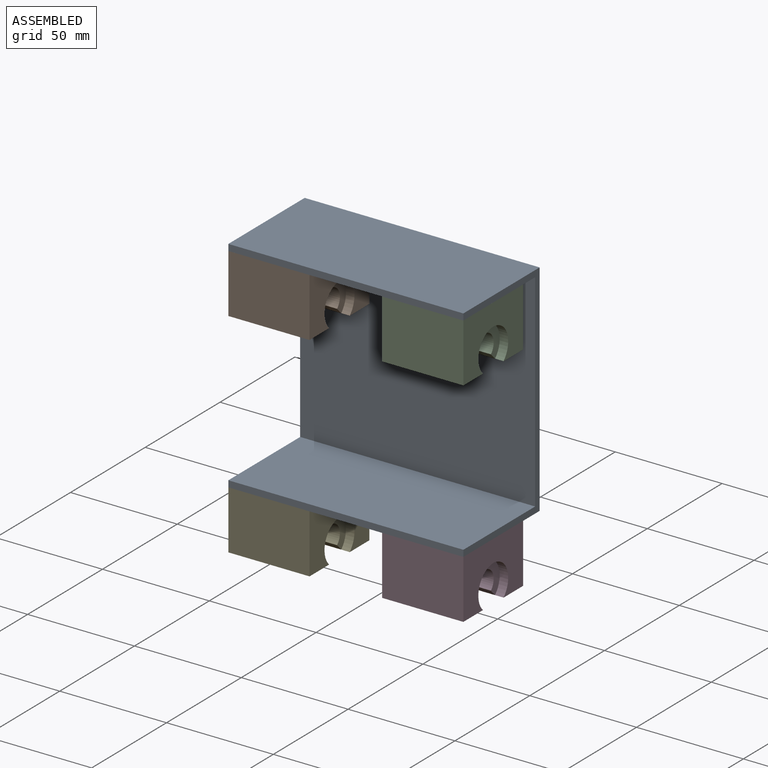
[diagram: assembled view]
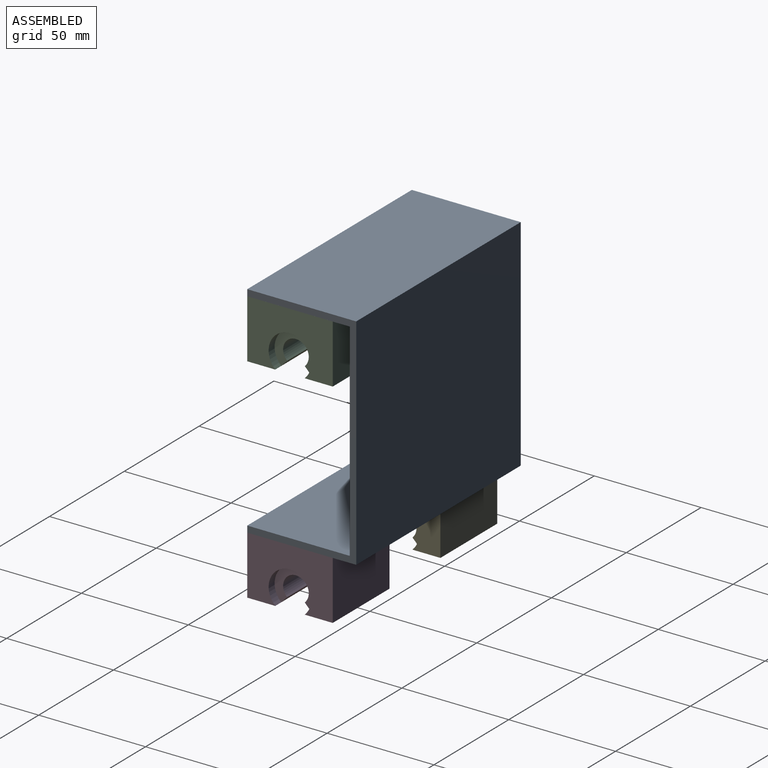
[diagram: assembled view, second angle]
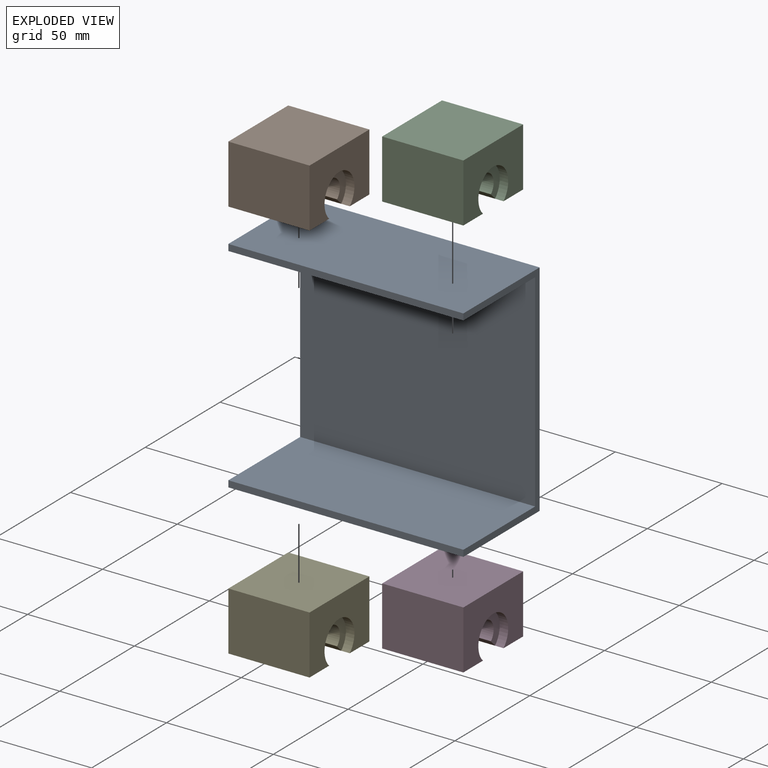
[diagram: exploded view]
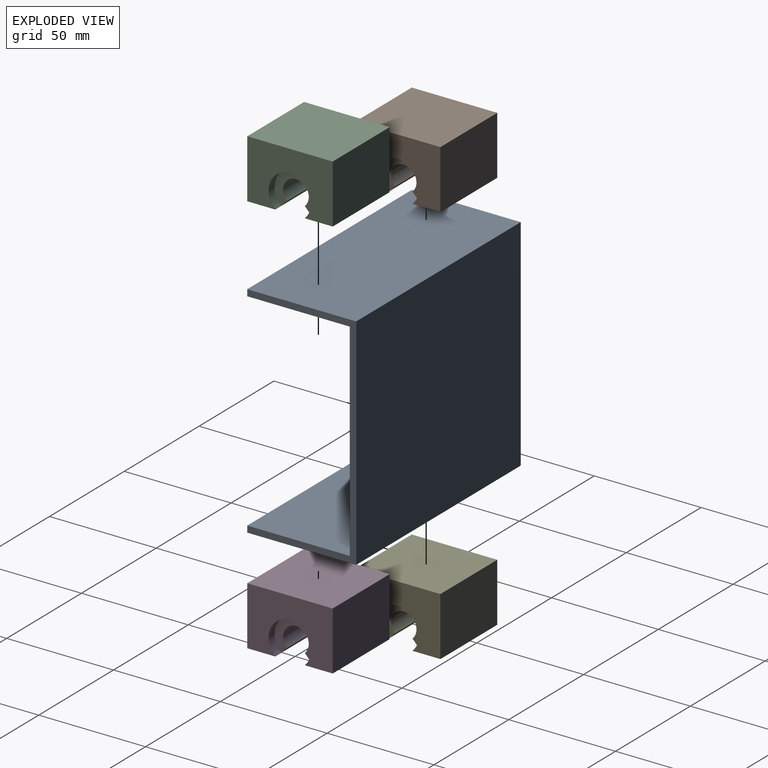
[diagram: exploded view, second angle]
ASSEMBLY  parts=5 mates=4
PART A: 10 faces, bbox 110x51x103 mm
  f0: plane 110x3mm, normal (0,1,0), area 330mm2, adj f1,f7,f8,f9
  f1: plane 110x51mm, normal (0,0,1), area 5610mm2, adj f0,f2,f8,f9
  f2: plane 110x103mm, normal (0,-1,0), area 11330mm2, adj f1,f3,f8,f9
  f3: plane 110x51mm, normal (0,0,-1), area 5610mm2, adj f2,f4,f8,f9
  f4: plane 110x3mm, normal (0,1,0), area 330mm2, adj f3,f5,f8,f9
  f5: plane 110x48mm, normal (0,0,1), area 5280mm2, adj f4,f6,f8,f9
  f6: plane 110x97mm, normal (0,1,0), area 10670mm2, adj f5,f7,f8,f9
  f7: plane 110x48mm, normal (0,0,-1), area 5280mm2, adj f0,f6,f8,f9
  f8: plane 103x51mm, normal (1,0,0), area 597mm2, adj f0,f1,f2,f3,f4,f5,f6,f7
  f9: plane 103x51mm, normal (-1,0,0), area 597mm2, adj f0,f1,f2,f3,f4,f5,f6,f7
PART B: 14 faces, bbox 38x40x27.5 mm
  f0: plane 30x2.9mm, normal (0,-0.72,-0.69), area 119.9mm2, adj f1,f4,f11,f13
  f1: cylinder r=6mm len=30mm, axis (-1,0,0), area 857.4mm2, adj f0,f2,f11,f13
  f2: plane 30x2.9mm, normal (0,0.72,-0.69), area 119.9mm2, adj f1,f8,f11,f13
  f3: cylinder r=10mm len=19.99mm, axis (-1,0,0), area 190.5mm2, adj f4,f8,f9,f11
  f4: plane 38x13.11mm, normal (0,0,-1), area 498.3mm2, adj f0,f3,f5,f9,f10,f12
  f5: plane 38x27.5mm, normal (0,1,0), area 1045mm2, adj f4,f6,f9,f10
  f6: plane 40x38mm, normal (0,0,1), area 1520mm2, adj f5,f7,f9,f10
  f7: plane 38x27.5mm, normal (0,-1,0), area 1045mm2, adj f6,f8,f9,f10
  f8: plane 38x13.11mm, normal (0,0,-1), area 498.3mm2, adj f2,f3,f7,f9,f10,f12
  f9: plane 40x27.5mm, normal (1,0,0), area 812.1mm2, adj f3,f4,f5,f6,f7,f8
  f10: plane 40x27.5mm, normal (-1,0,0), area 812.1mm2, adj f4,f5,f6,f7,f8,f12
  f11: plane 19.99x17.24mm, normal (1,0,0), area 152.3mm2, adj f0,f1,f2,f3
  f12: cylinder r=10mm len=19.99mm, axis (-1,0,0), area 190.5mm2, adj f4,f8,f10,f13
  f13: plane 19.99x17.24mm, normal (-1,0,0), area 152.3mm2, adj f0,f1,f2,f12
PART C: same geometry as B
PART D: same geometry as B
PART E: same geometry as B
PLACE A rot(axis=(0,0,1),180deg) t=(496.72,260.56,281.88)mm
PLACE B t=(386.72,240.05,330.45)mm
PLACE C t=(458.72,240.05,330.45)mm
PLACE D t=(458.72,240.05,230.45)mm
PLACE E t=(386.72,240.05,230.45)mm
MATE fastened A.f7 <-> C.f6  axis (0,0,-1) through (496.72,210.33,361.62)mm
MATE fastened B.f6 <-> A.f7  axis (0,0,1) through (386.72,210.33,361.62)mm
MATE fastened A.f3 <-> D.f6  axis (0,0,-1) through (496.72,210.33,261.62)mm
MATE fastened E.f6 <-> A.f3  axis (0,0,1) through (386.72,210.33,261.62)mm
